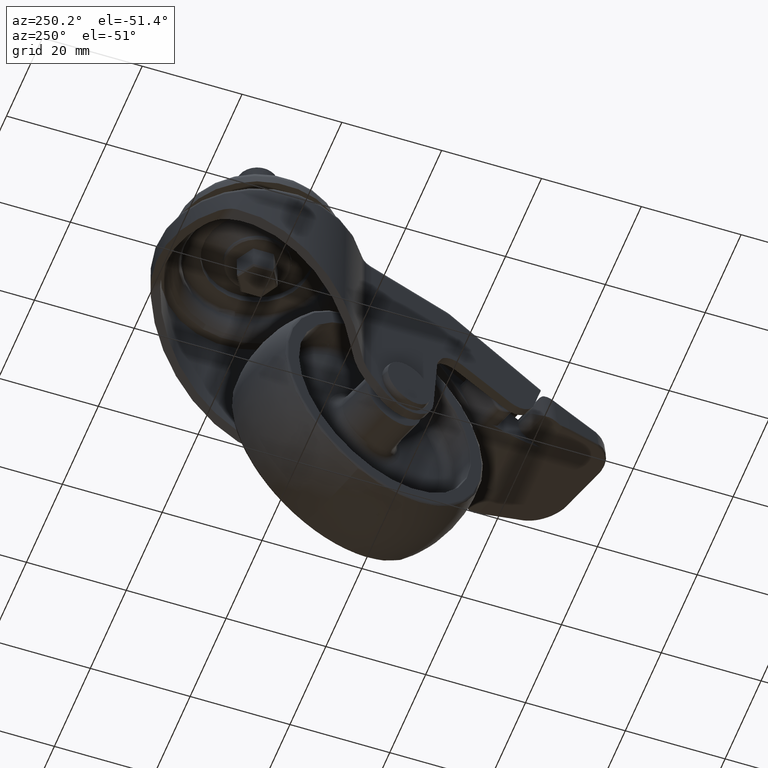
[diagram: clean part render]
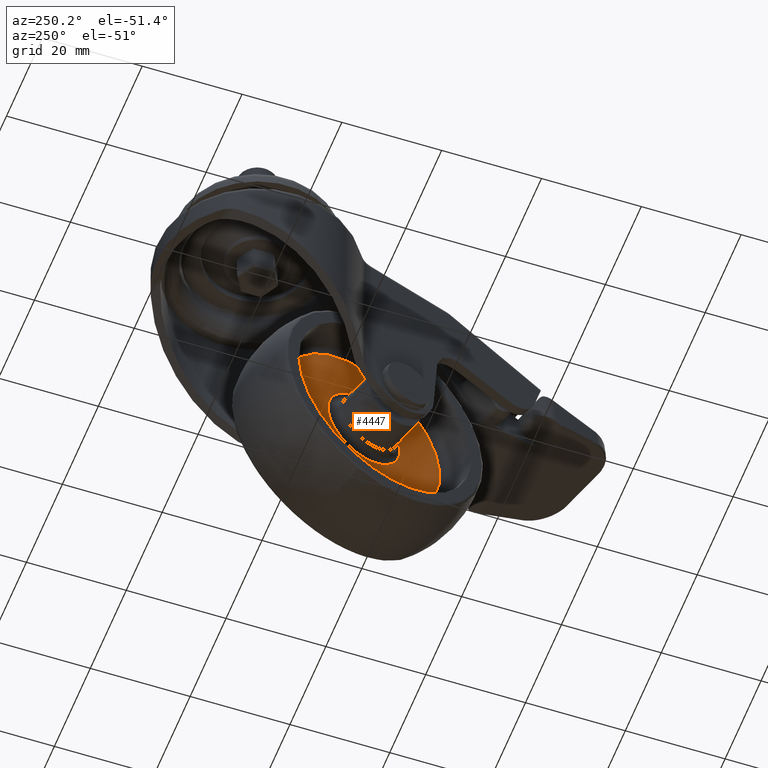
[diagram: same view with one face highlighted and labeled with its STEP entity id]
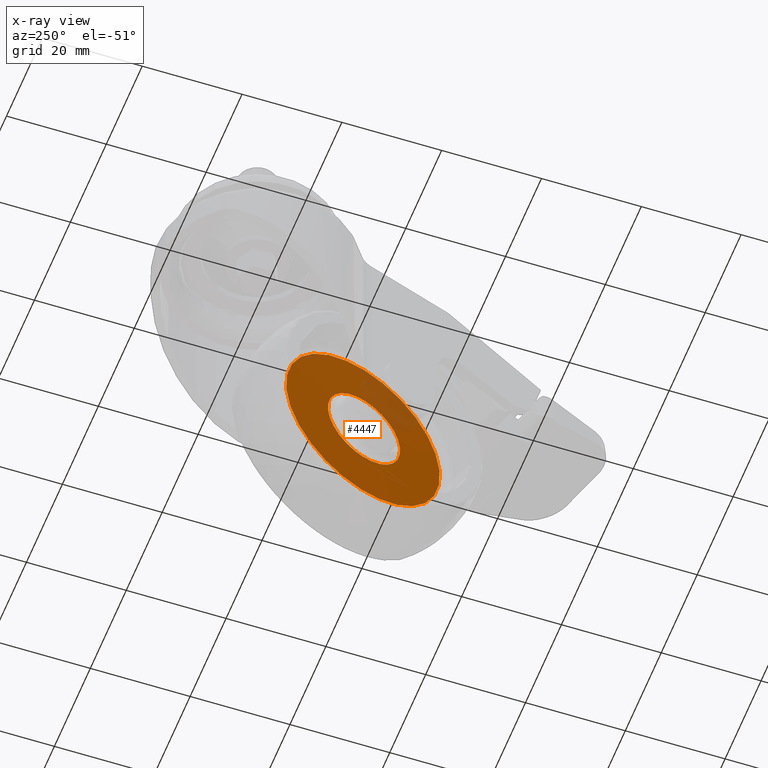
[diagram: x-ray of the same camera — body ghosted, the highlighted face saturated]
A machine part, auxiliary view. The second image highlights one B-rep face of the part: STEP entity #4447.
The next image is the same camera in x-ray: the body ghosted, the highlighted face saturated — about 14% of this face is hidden behind the body in this view.
In plain terms, the highlighted conical surface has half-angle 88.11 deg.
Its self-contained STEP definition (entity closure, byte-faithful):
#948=CONICAL_SURFACE('',#4762,18.3211444035143,1.53780429132395);
#1060=FACE_BOUND('',#1489,.T.);
#1186=FACE_OUTER_BOUND('',#1488,.T.);
#1488=EDGE_LOOP('',(#3158));
#1489=EDGE_LOOP('',(#3159));
#1853=CIRCLE('',#4745,18.3211444035142);
#1858=CIRCLE('',#4752,8.5830113722107);
#2047=VERTEX_POINT('',#6543);
#2052=VERTEX_POINT('',#6555);
#2488=EDGE_CURVE('',#2047,#2047,#1853,.T.);
#2493=EDGE_CURVE('',#2052,#2052,#1858,.T.);
#3158=ORIENTED_EDGE('',*,*,#2493,.T.);
#3159=ORIENTED_EDGE('',*,*,#2488,.T.);
#4447=ADVANCED_FACE('',(#1186,#1060),#948,.T.);
#4745=AXIS2_PLACEMENT_3D('',#6544,#5246,#5247);
#4752=AXIS2_PLACEMENT_3D('',#6556,#5260,#5261);
#4762=AXIS2_PLACEMENT_3D('',#6570,#5280,#5281);
#5246=DIRECTION('center_axis',(1.,0.,0.));
#5247=DIRECTION('ref_axis',(0.,0.,1.));
#5260=DIRECTION('center_axis',(-1.,0.,0.));
#5261=DIRECTION('ref_axis',(0.,0.,1.));
#5280=DIRECTION('center_axis',(-1.,0.,0.));
#5281=DIRECTION('ref_axis',(0.,0.,1.));
#6543=CARTESIAN_POINT('',(55.5051600305584,-14.575772836765,18.3211444035145));
#6544=CARTESIAN_POINT('Origin',(55.5051600305584,-14.575772836765,0.));
#6555=CARTESIAN_POINT('',(55.8265574803766,-14.575772836765,8.5830113722107));
#6556=CARTESIAN_POINT('Origin',(55.8265574803766,-14.575772836765,0.));
#6570=CARTESIAN_POINT('Origin',(55.5051600305584,-14.575772836765,0.));